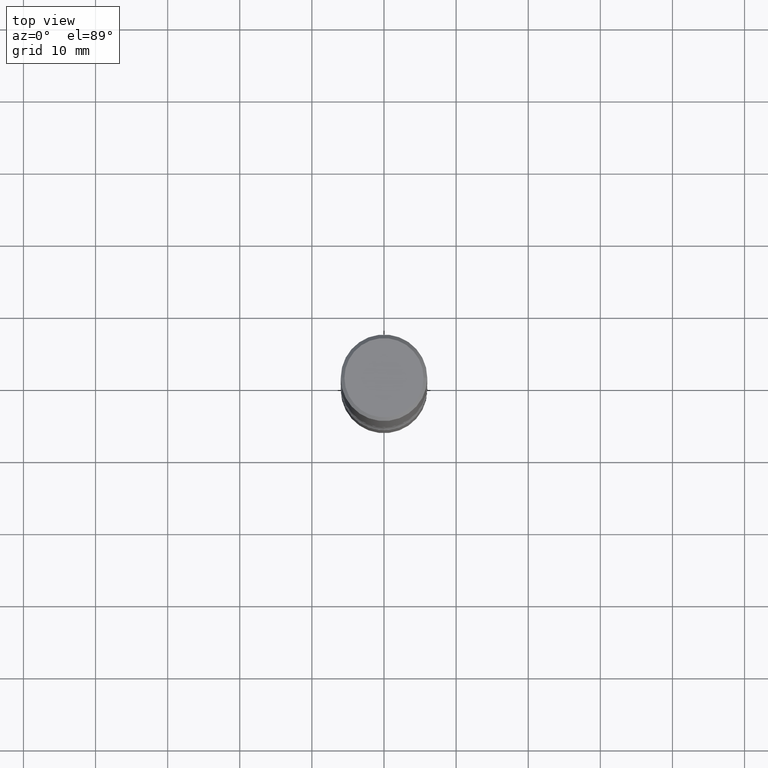
[diagram: clean part render]
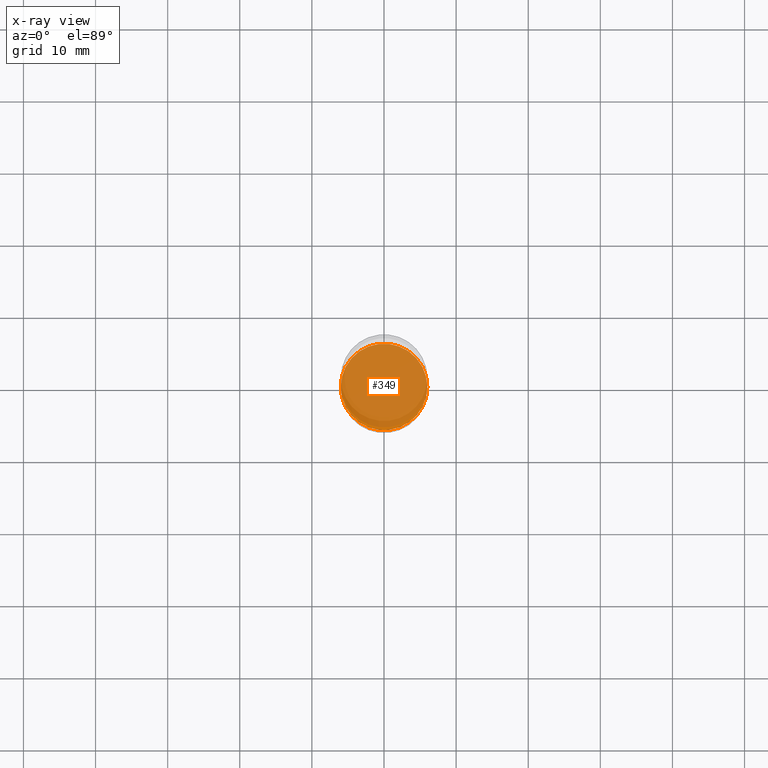
[diagram: x-ray — body ghosted, one internal face saturated and labeled with its STEP entity id]
A machine part, top view, then the same camera in x-ray: the body is ghosted and one INTERNAL B-rep face — a face not visible from any outside direction — is saturated and labeled: STEP entity #349.
In plain terms, the highlighted planar face has unit normal (0, -0, -1).
Its self-contained STEP definition (entity closure, byte-faithful):
#32 = VERTEX_POINT ( 'NONE', #269 ) ;
#55 = DIRECTION ( 'NONE',  ( -2.445468806185136597E-29, 3.491481338843145583E-15, 1.000000000000000000 ) ) ;
#103 = CARTESIAN_POINT ( 'NONE',  ( 7.124628819939777829E-29, -1.017208173258562247E-14, -2.913400000000000212 ) ) ;
#106 = CIRCLE ( 'NONE', #181, 0.2362000000000001321 ) ;
#108 = CIRCLE ( 'NONE', #461, 0.2362000000000001321 ) ;
#110 = CARTESIAN_POINT ( 'NONE',  ( 7.124628819939777829E-29, -1.017208173258562247E-14, -2.913400000000000212 ) ) ;
#181 = AXIS2_PLACEMENT_3D ( 'NONE', #268, #55, #225 ) ;
#225 = DIRECTION ( 'NONE',  ( 1.000000000000000000, -6.982962677686269077E-15, 0.000000000000000000 ) ) ;
#226 = AXIS2_PLACEMENT_3D ( 'NONE', #103, #542, #499 ) ;
#228 = PLANE ( 'NONE',  #226 ) ;
#238 = DIRECTION ( 'NONE',  ( 1.000000000000000000, -6.982962677686269077E-15, 0.000000000000000000 ) ) ;
#268 = CARTESIAN_POINT ( 'NONE',  ( 7.124628819939777829E-29, -1.017208173258562247E-14, -2.913400000000000212 ) ) ;
#269 = CARTESIAN_POINT ( 'NONE',  ( -0.2362000000000001321, -1.007454796688149554E-14, -2.913400000000000212 ) ) ;
#302 = ORIENTED_EDGE ( 'NONE', *, *, #515, .T. ) ;
#303 = VERTEX_POINT ( 'NONE', #313 ) ;
#313 = CARTESIAN_POINT ( 'NONE',  ( 0.2362000000000001321, -1.182145751705511899E-14, -2.913400000000000212 ) ) ;
#349 = ADVANCED_FACE ( 'NONE', ( #533 ), #228, .F. ) ;
#370 = EDGE_LOOP ( 'NONE', ( #500, #302 ) ) ;
#375 = EDGE_CURVE ( 'NONE', #303, #32, #106, .T. ) ;
#461 = AXIS2_PLACEMENT_3D ( 'NONE', #110, #473, #238 ) ;
#473 = DIRECTION ( 'NONE',  ( -2.445468806185136597E-29, 3.491481338843145583E-15, 1.000000000000000000 ) ) ;
#499 = DIRECTION ( 'NONE',  ( -1.000000000000000000, 6.982962677686265922E-15, -4.876176775795935793E-29 ) ) ;
#500 = ORIENTED_EDGE ( 'NONE', *, *, #375, .T. ) ;
#515 = EDGE_CURVE ( 'NONE', #32, #303, #108, .T. ) ;
#533 = FACE_OUTER_BOUND ( 'NONE', #370, .T. ) ;
#542 = DIRECTION ( 'NONE',  ( 2.438088387897960049E-29, -3.491481338843145188E-15, -1.000000000000000000 ) ) ;